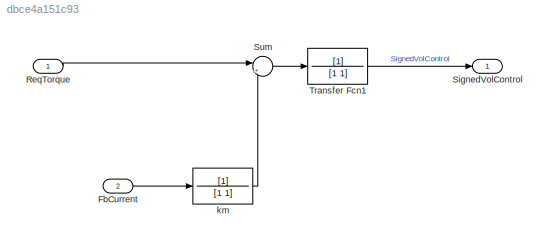
MODEL slx_dbce4a151c93
KIND model
CONFIG AbsTol = auto
CONFIG EnableMultiTasking = off
CONFIG FixedStep = auto
CONFIG MaxStep = auto
CONFIG MinStep = auto
CONFIG RelTol = 1e-3
CONFIG SampleTimeConstraint = Unconstrained
CONFIG SolverName = VariableStepAuto
CONFIG StartTime = 0.0
CONFIG StopTime = 10.0
BLOCK [Inport] FbCurrent
  Port = 2
BLOCK [Inport] ReqTorque
BLOCK [Outport] SignedVolControl
BLOCK [Sum] Sum
  Inputs = |+-
BLOCK [TransferFcn] Transfer Fcn1
  Denominator = [1 1]
BLOCK [TransferFcn] km
  Denominator = [1 1]
LINE FbCurrent:1 -> km:1
LINE ReqTorque:1 -> Sum:1
LINE Sum:1 -> Transfer Fcn1:1
LINE Transfer Fcn1:1 -> SignedVolControl:1
LINE km:1 -> Sum:2
